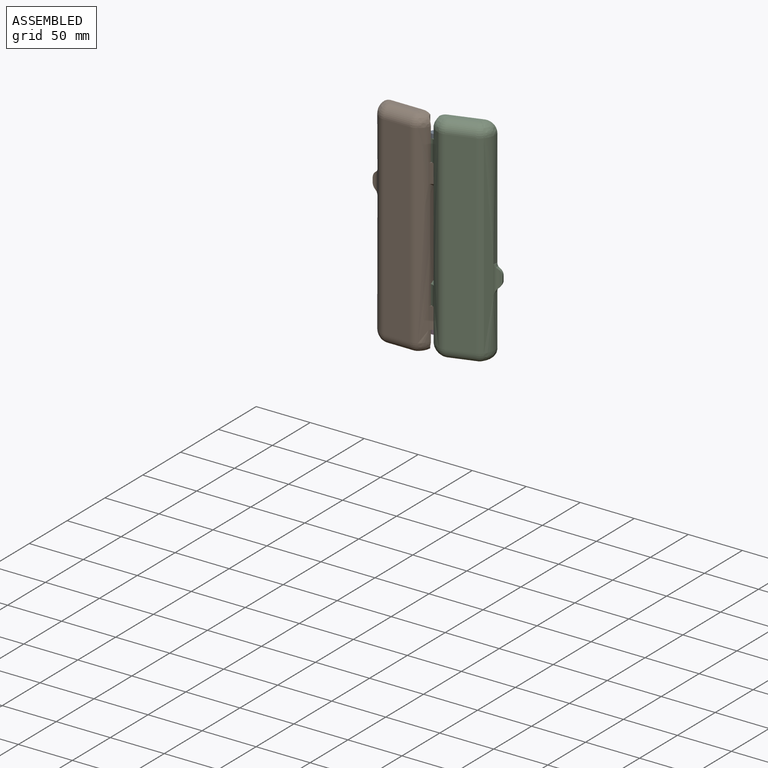
[diagram: assembled view]
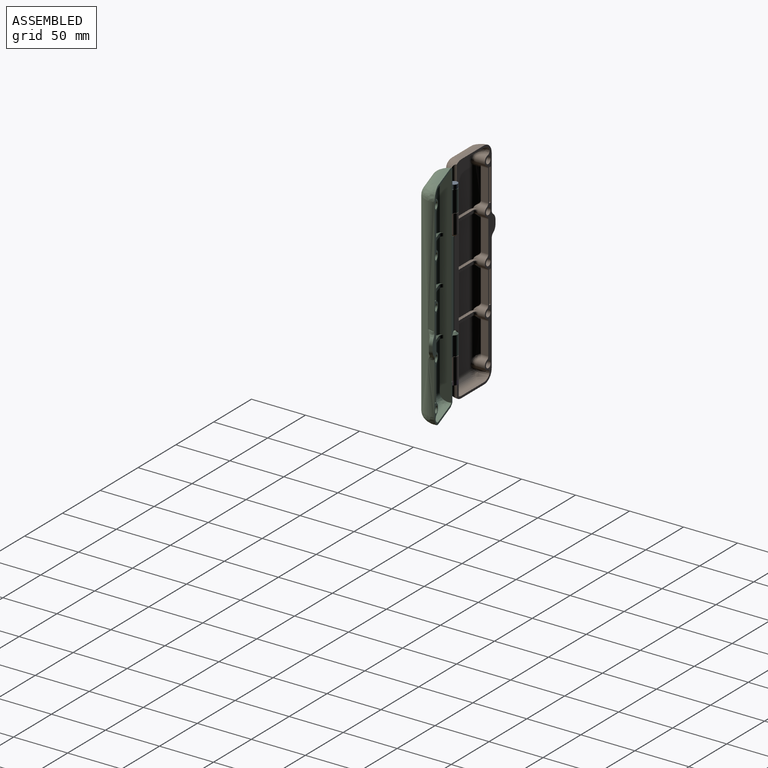
[diagram: assembled view, second angle]
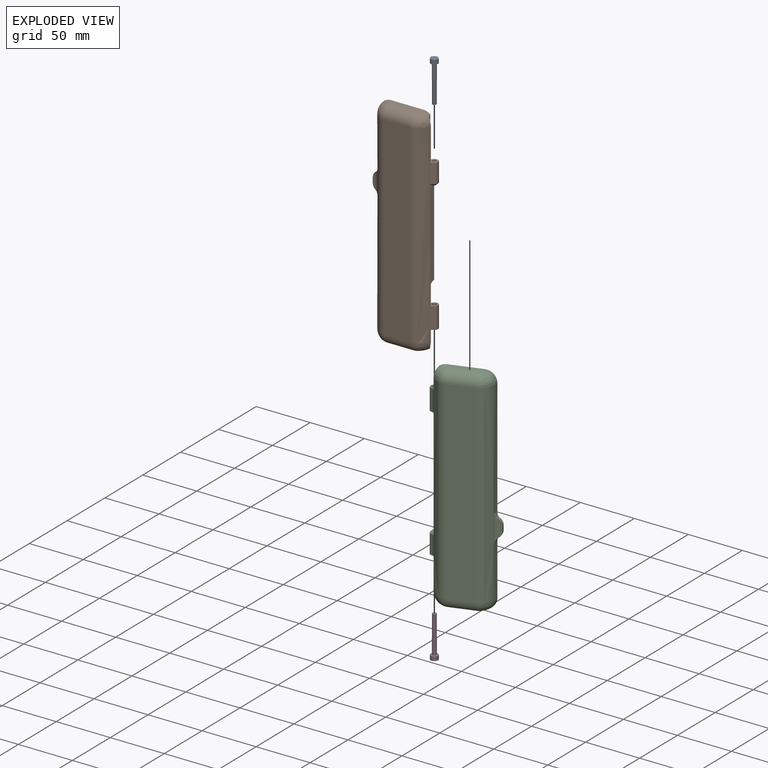
[diagram: exploded view]
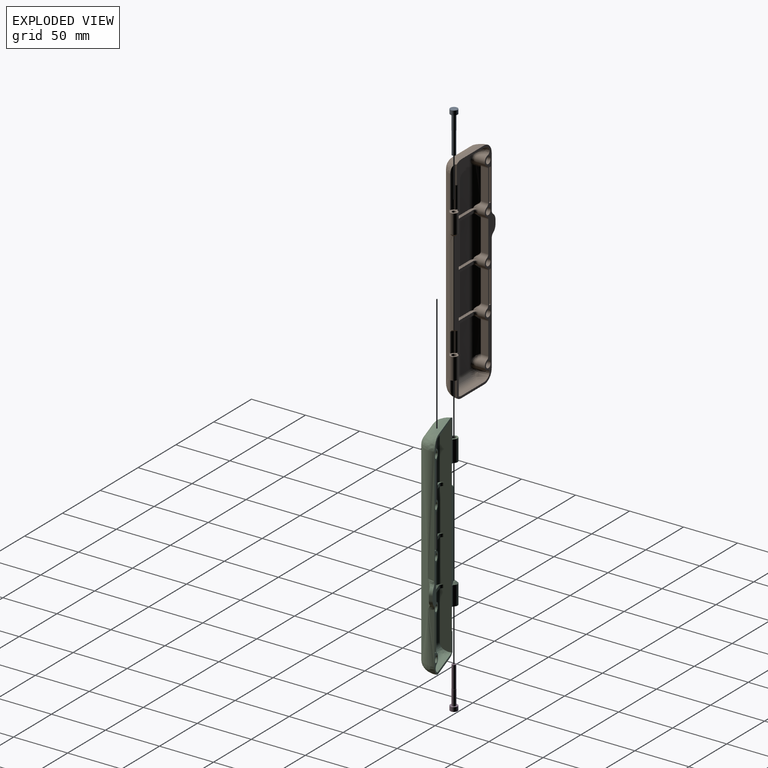
[diagram: exploded view, second angle]
ASSEMBLY  parts=4 mates=3
PART A: 7 faces, bbox 38.5x6.8x6.8 mm
  f0: plane 6.8x6.8mm, normal (-1,0,0), area 36.3mm2, adj f6
  f1: plane 3.6x3.6mm, normal (1,0,0), area 10.2mm2, adj f2
  f2: cylinder r=1.8mm len=20.5mm, axis (-1,0,0), area 231.8mm2, adj f1,f3
  f3: plane 3.8x3.8mm, normal (1,0,0), area 1.2mm2, adj f2,f4
  f4: cylinder r=1.9mm len=14mm, axis (-1,0,0), area 167.1mm2, adj f3,f5
  f5: plane 6.8x6.8mm, normal (1,0,0), area 25mm2, adj f4,f6
  f6: cylinder r=3.4mm len=6.8mm, axis (-1,0,0), area 85.5mm2, adj f0,f5
PART B: 152 faces, bbox 58.8x17.8x200.3 mm
  f0: plane 200.32x54.81mm, normal (0,1,0), area 1640.6mm2, adj f2,f4,f6,f19,f20,f25,f26,f27
  f1: extruded ~180x11.53mm, area 2090.3mm2, adj f2,f4,f30,f128,f129,f132,f133,f134
  f2: bspline ~13.78x13.69mm, area 156.1mm2, adj f0,f1,f26,f36,f143
  f3: cylinder r=1.75mm len=16.9mm, axis (0,0,1), area 185.8mm2, adj f138,f142
  f4: bspline ~13.78x13.69mm, area 156.1mm2, adj f0,f1,f27,f33,f134
  f5: cylinder r=3.5mm len=19.9mm, axis (0,0,1), area 276.1mm2, adj f128,f129,f131,f135
  f6: plane 194.4x9.17mm, normal (-1,0,0), area 1724.9mm2, adj f0,f7,f8,f9,f19,f20,f39,f113
  f7: extruded ~39.7x1.56mm, area 79.9mm2, adj f6,f15,f114,f117
  f8: extruded ~39.7x1.56mm, area 79.9mm2, adj f6,f44,f113,f119
  f9: extruded ~45.8x1.56mm, area 92.2mm2, adj f6,f12,f19,f120
  f10: plane 39.7x24.39mm, normal (0,1,0), area 968.4mm2, adj f43,f44,f113,f119
  f11: cylinder r=8mm len=45.8mm, axis (0,0,-1), area 202.7mm2, adj f16,f21,f46,f55,f79,f120
  f12: cylinder r=8mm len=45.8mm, axis (0,0,-1), area 232.8mm2, adj f9,f16,f47,f120
  f13: plane 45.8x24.39mm, normal (0,1,0), area 1117.2mm2, adj f17,f18,f52,f116
  f14: cylinder r=8mm len=39.7mm, axis (0,0,-1), area 200.5mm2, adj f23,f42,f57,f59,f114,f117
  f15: cylinder r=8mm len=39.7mm, axis (0,0,-1), area 201.8mm2, adj f7,f42,f114,f117
  f16: plane 45.8x24.39mm, normal (0,1,0), area 1117.2mm2, adj f11,f12,f48,f120
  f17: cylinder r=8mm len=45.8mm, axis (0,0,-1), area 202.7mm2, adj f13,f24,f51,f59,f75,f116
  f18: cylinder r=8mm len=45.8mm, axis (0,0,-1), area 232.8mm2, adj f13,f39,f50,f116
  f19: bspline ~11.9x11.78mm, area 55.6mm2, adj f0,f6,f9,f41,f47
  f20: bspline ~11.9x11.78mm, area 55.6mm2, adj f0,f6,f39,f40,f50
  f21: extruded ~34.37x3.56mm, area 158mm2, adj f11,f54,f55,f81,f87
  f22: extruded ~36.86x3.56mm, area 166.1mm2, adj f43,f55,f56,f57,f85,f86
  f23: extruded ~36.86x3.56mm, area 166.1mm2, adj f14,f57,f58,f59,f83,f84
  f24: extruded ~34.37x3.56mm, area 158mm2, adj f17,f59,f60,f76,f82
  f25: extruded ~180x12.05mm, area 2443.8mm2, adj f0,f29,f31,f35,f92,f93,f94
  f26: plane 30x4mm, normal (0,0,1), area 112.2mm2, adj f0,f2,f35,f38
  f27: plane 30x4mm, normal (0,0,-1), area 112.2mm2, adj f0,f4,f31,f34
  f28: plane 180x24.39mm, normal (0,-1,0), area 4390.7mm2, adj f29,f30,f34,f38
  f29: cylinder r=10mm len=180mm, axis (0,0,-1), area 1143.7mm2, adj f25,f28,f32,f37
  f30: cylinder r=10mm len=180mm, axis (0,0,-1), area 1143.7mm2, adj f1,f28,f33,f36
  f31: bspline ~13.78x13.69mm, area 172.7mm2, adj f0,f25,f27,f32
  f32: sphere r=10mm, area 63.5mm2, adj f29,f31,f34
  f33: sphere r=10mm, area 63.5mm2, adj f4,f30,f34
  f34: cylinder r=10mm len=24.39mm, axis (1,0,0), area 383.2mm2, adj f27,f28,f32,f33
  f35: bspline ~13.78x13.69mm, area 172.7mm2, adj f0,f25,f26,f37
  f36: sphere r=10mm, area 40.4mm2, adj f2,f30,f38
  f37: sphere r=10mm, area 63.5mm2, adj f29,f35,f38
  f38: cylinder r=10mm len=24.39mm, axis (1,0,0), area 383.2mm2, adj f26,f28,f36,f37
  f39: extruded ~45.8x1.56mm, area 92.2mm2, adj f6,f18,f20,f116
  f40: plane 30x4mm, normal (0,0,-1), area 112.2mm2, adj f0,f20,f49,f52
  f41: plane 30x4mm, normal (0,0,1), area 112.2mm2, adj f0,f19,f45,f48
  f42: plane 39.7x24.39mm, normal (0,1,0), area 968.4mm2, adj f14,f15,f114,f117
  f43: cylinder r=8mm len=39.7mm, axis (0,0,-1), area 200.5mm2, adj f10,f22,f55,f57,f113,f119
  f44: cylinder r=8mm len=39.7mm, axis (0,0,-1), area 201.8mm2, adj f8,f10,f113,f119
  f45: bspline ~11.9x11.78mm, area 82mm2, adj f0,f41,f46,f77
  f46: sphere r=8mm, area 39.8mm2, adj f11,f45,f48,f78
  f47: sphere r=8mm, area 40.7mm2, adj f12,f19,f48
  f48: cylinder r=8mm len=24.39mm, axis (1,0,0), area 306.5mm2, adj f16,f41,f46,f47
  f49: bspline ~11.9x11.78mm, area 82.1mm2, adj f0,f40,f51,f72
  f50: sphere r=8mm, area 40.7mm2, adj f18,f20,f52
  f51: sphere r=8mm, area 39.8mm2, adj f17,f49,f52,f73
  f52: cylinder r=8mm len=24.39mm, axis (1,0,0), area 306.5mm2, adj f13,f40,f50,f51
  f53: cylinder r=4.6mm len=8.95mm, axis (0,1,0), area 90.2mm2, adj f0,f77,f78,f79,f80,f81
  f54: plane 28.74x6.99mm, normal (1,0,0), area 200.6mm2, adj f0,f21,f80,f81,f87
  f55: cylinder r=4.6mm len=10.95mm, axis (0,1,0), area 96mm2, adj f0,f11,f21,f22,f43,f86,f87,f119
  f56: plane 28.73x6.98mm, normal (1,0,0), area 200.6mm2, adj f0,f22,f85,f86
  f57: cylinder r=4.6mm len=10.95mm, axis (0,1,0), area 96mm2, adj f0,f14,f22,f23,f43,f84,f85,f113
  f58: plane 28.73x6.98mm, normal (1,0,0), area 200.6mm2, adj f0,f23,f83,f84
  f59: cylinder r=4.6mm len=10.95mm, axis (0,1,0), area 96mm2, adj f0,f14,f17,f23,f24,f82,f83,f116
  f60: plane 28.74x6.99mm, normal (1,0,0), area 200.6mm2, adj f0,f24,f74,f76,f82
  f61: cylinder r=4.6mm len=8.95mm, axis (0,1,0), area 90.2mm2, adj f0,f72,f73,f74,f75,f76
  f62: cylinder r=3.05mm len=6.1mm, axis (0,1,0), area 76.7mm2, adj f0,f63
  f63: plane 6.1x6.1mm, normal (0,1,0), area 29.2mm2, adj f62
  f64: cylinder r=3.05mm len=6.1mm, axis (0,1,0), area 76.7mm2, adj f0,f65
  f65: plane 6.1x6.1mm, normal (0,1,0), area 29.2mm2, adj f64
  f66: cylinder r=3.05mm len=6.1mm, axis (0,1,0), area 76.7mm2, adj f0,f67
  f67: plane 6.1x6.1mm, normal (0,1,0), area 29.2mm2, adj f66
  f68: cylinder r=3.05mm len=6.1mm, axis (0,1,0), area 76.7mm2, adj f0,f69
  f69: plane 6.1x6.1mm, normal (0,1,0), area 29.2mm2, adj f68
  f70: cylinder r=3.05mm len=6.1mm, axis (0,1,0), area 76.7mm2, adj f0,f71
  f71: plane 6.1x6.1mm, normal (0,1,0), area 29.2mm2, adj f70
  f72: bspline ~12.66x7.81mm, area 56.7mm2, adj f0,f49,f61,f73
  f73: bspline ~3.34x3.31mm, area 4.9mm2, adj f51,f61,f72,f75
  f74: cylinder r=3mm len=6.97mm, axis (0,1,0), area 22.5mm2, adj f0,f60,f61,f76
  f75: bspline ~11.33x5.25mm, area 36.9mm2, adj f17,f61,f73,f76
  f76: bspline ~6.84x5.53mm, area 14.7mm2, adj f24,f60,f61,f74,f75
  f77: bspline ~11.42x7.98mm, area 56.7mm2, adj f0,f45,f53,f78
  f78: bspline ~3.34x3.31mm, area 4.9mm2, adj f46,f53,f77,f79
  f79: bspline ~11.33x5.25mm, area 36.9mm2, adj f11,f53,f78,f81
  f80: cylinder r=3mm len=6.97mm, axis (0,1,0), area 22.5mm2, adj f0,f53,f54,f81
  f81: bspline ~6.84x5.53mm, area 14.7mm2, adj f21,f53,f54,f79,f80
  f82: cylinder r=3mm len=8.99mm, axis (0,1,0), area 27.9mm2, adj f0,f24,f59,f60
  f83: cylinder r=3mm len=8.99mm, axis (0,1,0), area 27.9mm2, adj f0,f23,f58,f59
  f84: cylinder r=3mm len=8.99mm, axis (0,1,0), area 27.9mm2, adj f0,f23,f57,f58
  f85: cylinder r=3mm len=8.99mm, axis (0,1,0), area 27.9mm2, adj f0,f22,f56,f57
  f86: cylinder r=3mm len=8.99mm, axis (0,1,0), area 27.9mm2, adj f0,f22,f55,f56
  f87: cylinder r=3mm len=8.99mm, axis (0,1,0), area 27.9mm2, adj f0,f21,f54,f55
  f88: cylinder r=7mm len=5.8mm, axis (0,1,0), area 20.3mm2, adj f0,f90,f91,f93,f94
  f89: cylinder r=7mm len=5.8mm, axis (0,1,0), area 20.3mm2, adj f0,f90,f91,f92,f93
  f90: plane 13.64x1.92mm, normal (0,-1,0), area 20.4mm2, adj f88,f89,f91,f93
  f91: plane 4x3mm, normal (-1,0,0), area 12mm2, adj f0,f88,f89,f90
  f92: bspline ~11.73x5.89mm, area 23.6mm2, adj f0,f25,f89,f93
  f93: cylinder r=5mm len=25.75mm, axis (0,0,-1), area 107.5mm2, adj f25,f88,f89,f90,f92,f94
  f94: bspline ~11.73x5.89mm, area 23.6mm2, adj f0,f25,f88,f93
  f95: plane 30x1.5mm, normal (1,0,0), area 45mm2, adj f0,f96,f98,f105
  f96: plane 2.4x1.5mm, normal (0,0,-1), area 3.6mm2, adj f0,f95,f97,f106
  f97: plane 30x1.5mm, normal (-1,0,0), area 45mm2, adj f0,f96,f98,f108
  f98: plane 2.4x1.5mm, normal (0,0,1), area 3.6mm2, adj f0,f95,f97,f107
  f99: plane 29x1.4mm, normal (0,1,0), area 40.6mm2, adj f105,f106,f107,f108
  f100: plane 30x1.5mm, normal (1,0,0), area 45mm2, adj f0,f101,f103,f110
  f101: plane 2.4x1.5mm, normal (0,0,-1), area 3.6mm2, adj f0,f100,f102,f112
  f102: plane 30x1.5mm, normal (-1,0,0), area 45mm2, adj f0,f101,f103,f111
  f103: plane 2.4x1.5mm, normal (0,0,1), area 3.6mm2, adj f0,f100,f102,f109
  f104: plane 29x1.4mm, normal (0,1,0), area 40.6mm2, adj f109,f110,f111,f112
  f105: cylinder r=0.5mm len=30mm, axis (0,0,1), area 23.2mm2, adj f95,f99,f106,f107
  f106: cylinder r=0.5mm len=2.4mm, axis (1,0,0), area 1.5mm2, adj f96,f99,f105,f108
  f107: cylinder r=0.5mm len=2.4mm, axis (-1,0,0), area 1.5mm2, adj f98,f99,f105,f108
  f108: cylinder r=0.5mm len=30mm, axis (0,0,-1), area 23.2mm2, adj f97,f99,f106,f107
  f109: cylinder r=0.5mm len=2.4mm, axis (-1,0,0), area 1.5mm2, adj f103,f104,f110,f111
  f110: cylinder r=0.5mm len=30mm, axis (0,0,1), area 23.2mm2, adj f100,f104,f109,f112
  f111: cylinder r=0.5mm len=30mm, axis (0,0,-1), area 23.2mm2, adj f102,f104,f109,f112
  f112: cylinder r=0.5mm len=2.4mm, axis (1,0,0), area 1.5mm2, adj f101,f104,f110,f111
  f113: plane 34.82x6.17mm, normal (0,0,-1), area 100.8mm2, adj f6,f8,f10,f43,f44,f57,f115,f124
  f114: plane 34.82x6.17mm, normal (0,0,1), area 100.8mm2, adj f6,f7,f14,f15,f42,f57,f115,f124
  f115: plane 28.55x3mm, normal (0,1,0), area 85.3mm2, adj f113,f114,f124,f127
  f116: plane 34.82x6.17mm, normal (0,0,1), area 100.8mm2, adj f6,f13,f17,f18,f39,f59,f118,f123
  f117: plane 34.82x6.17mm, normal (0,0,-1), area 100.8mm2, adj f6,f7,f14,f15,f42,f59,f118,f123
  f118: plane 28.55x3mm, normal (0,1,0), area 85.3mm2, adj f116,f117,f123,f126
  f119: plane 34.82x6.17mm, normal (0,0,1), area 100.8mm2, adj f6,f8,f10,f43,f44,f55,f121,f122
  f120: plane 34.82x6.17mm, normal (0,0,-1), area 100.8mm2, adj f6,f9,f11,f12,f16,f55,f121,f122
  f121: plane 28.55x3mm, normal (0,1,0), area 85.3mm2, adj f119,f120,f122,f125
  f122: torus R=7.6mm, axis (0,1,0), area 13.9mm2, adj f55,f119,f120,f121
  f123: torus R=7.6mm, axis (0,1,0), area 13.9mm2, adj f59,f116,f117,f118
  f124: torus R=7.6mm, axis (0,1,0), area 13.9mm2, adj f57,f113,f114,f115
  f125: cylinder r=3mm len=3mm, axis (0,0,1), area 14.1mm2, adj f6,f119,f120,f121
  f126: cylinder r=3mm len=3mm, axis (0,0,-1), area 14.1mm2, adj f6,f116,f117,f118
  f127: cylinder r=3mm len=3mm, axis (0,0,-1), area 14.1mm2, adj f6,f113,f114,f115
  f128: plane 9.21x8.64mm, normal (0,0,-1), area 27.5mm2, adj f0,f1,f5,f130,f131,f134,f135
  f129: plane 9.21x9.16mm, normal (0,0,1), area 28.1mm2, adj f0,f1,f5,f130,f131,f133,f135,f136
  f130: cylinder r=2.1mm len=19.9mm, axis (0,0,1), area 262.6mm2, adj f128,f129
  f131: cylinder r=2mm len=19.9mm, axis (0,0,1), area 47.7mm2, adj f0,f5,f128,f129
  f132: plane 2.01x1.8mm, normal (0,0,-1), area 2.5mm2, adj f0,f1,f149,f150,f151
  f133: cylinder r=3.8mm len=18.3mm, axis (0,0,-1), area 71.6mm2, adj f1,f129,f136,f149
  f134: cylinder r=3.8mm len=17.85mm, axis (0,0,1), area 75mm2, adj f0,f1,f4,f128
  f135: cylinder r=5mm len=19.9mm, axis (0,0,-1), area 73.4mm2, adj f1,f5,f128,f129
  f136: cylinder r=2.3mm len=18.3mm, axis (0,0,-1), area 49.8mm2, adj f0,f129,f133,f150
  f137: plane 3.2x3.16mm, normal (0,0,-1), area 5.5mm2, adj f0,f1,f146,f147,f148,f151
  f138: plane 9.21x9.16mm, normal (0,0,1), area 32.3mm2, adj f0,f1,f3,f139,f140,f141,f143,f144
  f139: cylinder r=5mm len=17.9mm, axis (0,0,1), area 66mm2, adj f1,f138,f140,f148
  f140: cylinder r=3.5mm len=17.9mm, axis (0,0,1), area 248.3mm2, adj f138,f139,f141,f147
  f141: cylinder r=2mm len=17.9mm, axis (0,0,1), area 42.9mm2, adj f0,f138,f140,f146
  f142: plane 3.5x3.5mm, normal (0,0,1), area 9.6mm2, adj f3
  f143: cylinder r=3.8mm len=37.95mm, axis (0,0,-1), area 164.6mm2, adj f0,f1,f2,f138,f144,f145
  f144: cylinder r=2.3mm len=20.5mm, axis (0,0,-1), area 55.8mm2, adj f0,f138,f143,f145
  f145: plane 2.13x1.43mm, normal (0,0,-1), area 0.6mm2, adj f0,f143,f144
  f146: cone r=4mm half-angle=45deg, axis (0,0,-1), area 3.2mm2, adj f0,f137,f141,f147
  f147: cone r=3.5mm half-angle=45deg, axis (0,0,1), area 28mm2, adj f137,f140,f146,f148
  f148: cone r=7mm half-angle=45deg, axis (0,0,-1), area 4.6mm2, adj f1,f137,f139,f147
  f149: cone r=3.8mm half-angle=45deg, axis (0,0,-1), area 8.4mm2, adj f1,f132,f133,f150
  f150: cone r=2.3mm half-angle=45deg, axis (0,0,1), area 3.8mm2, adj f0,f132,f136,f149
  f151: cylinder r=0.5mm len=79.8mm, axis (0,0,-1), area 64.4mm2, adj f0,f1,f132,f137
PART C: same geometry as B
PART D: same geometry as A
PLACE A rot(axis=(-0.63,0.46,0.63),130.9deg) t=(25,0,80)mm
PLACE B at identity fixed
PLACE C rot(axis=(0.16,-0.99,0),180deg) t=(48.78,7.71,0)mm
PLACE D rot(axis=(-0.58,-0.58,-0.58),120deg) t=(25,0,-80)mm
MATE fastened C.f130 <-> A.f2  axis (0,0,1) through (25,0,80)mm
MATE revolute C.f130 <-> B.f3  axis (0,0,-1) through (25,0,60.1)mm
MATE fastened D.f2 <-> B.f130  axis (0,0,1) through (25,0,-80)mm
